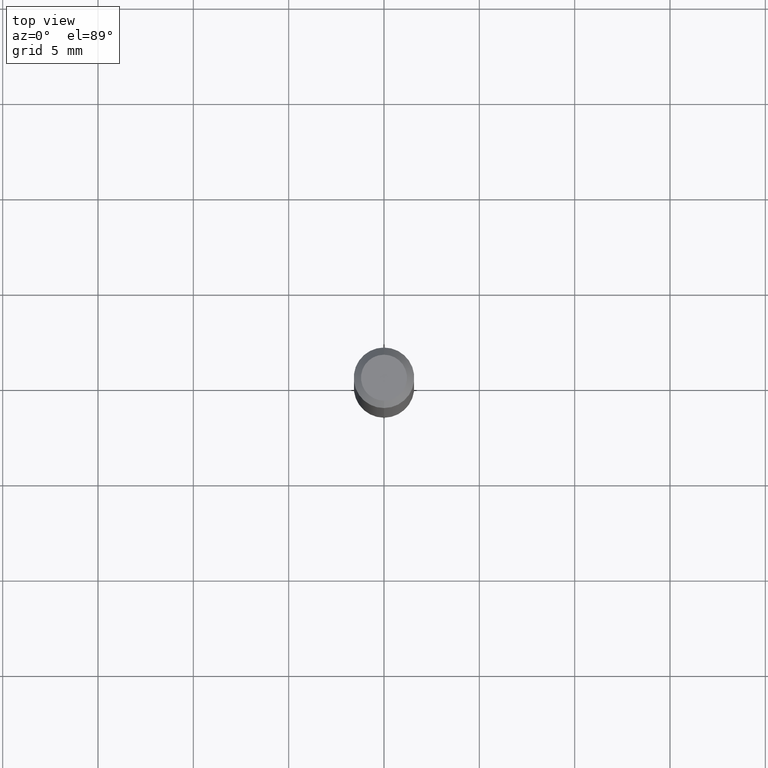
[diagram: clean part render]
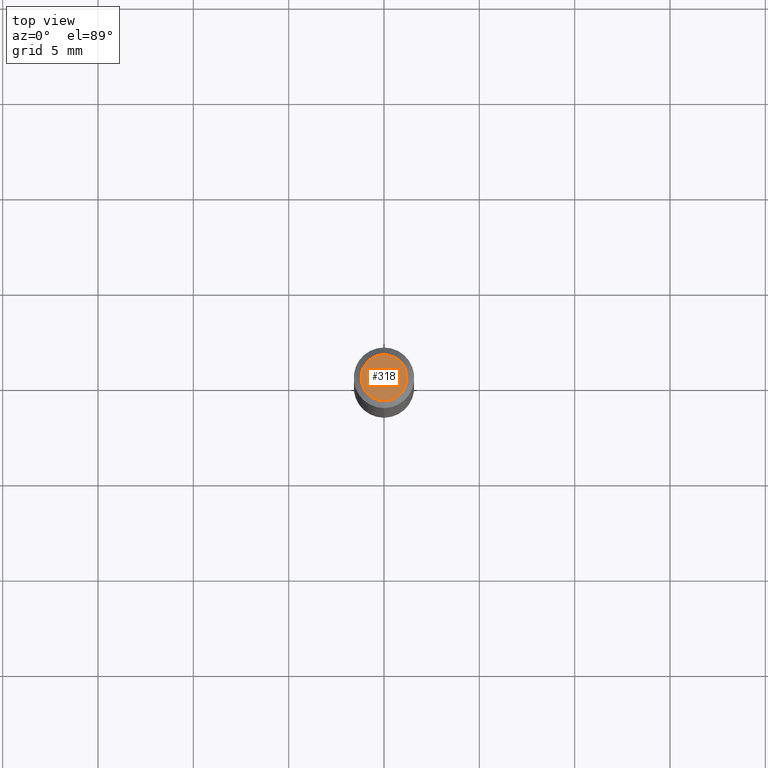
[diagram: same view with one face highlighted and labeled with its STEP entity id]
A machine part, top view. The second image highlights one B-rep face of the part: STEP entity #318.
In plain terms, the highlighted planar face has unit normal (0, -0, -1).
Its self-contained STEP definition (entity closure, byte-faithful):
#2 = EDGE_CURVE ( 'NONE', #114, #412, #182, .T. ) ;
#30 = EDGE_CURVE ( 'NONE', #412, #114, #115, .T. ) ;
#44 = DIRECTION ( 'NONE',  ( -6.982962677686266711E-15, -1.000000000000000000, 3.491578020297541166E-15 ) ) ;
#114 = VERTEX_POINT ( 'NONE', #478 ) ;
#115 = CIRCLE ( 'NONE', #218, 0.04749999999999999362 ) ;
#125 = DIRECTION ( 'NONE',  ( -2.445401293886370211E-29, 3.491578020297540772E-15, 1.000000000000000000 ) ) ;
#142 = DIRECTION ( 'NONE',  ( 2.445401293886369650E-29, -3.491578020297540772E-15, -1.000000000000000000 ) ) ;
#176 = CARTESIAN_POINT ( 'NONE',  ( 3.316907271900976096E-16, 0.04749999999999999362, -1.702778195755068235E-16 ) ) ;
#182 = CIRCLE ( 'NONE', #495, 0.04749999999999999362 ) ;
#207 = DIRECTION ( 'NONE',  ( -2.445401293886370211E-29, 3.491578020297540772E-15, 1.000000000000000000 ) ) ;
#211 = AXIS2_PLACEMENT_3D ( 'NONE', #176, #142, #291 ) ;
#218 = AXIS2_PLACEMENT_3D ( 'NONE', #485, #125, #443 ) ;
#220 = PLANE ( 'NONE',  #211 ) ;
#229 = ORIENTED_EDGE ( 'NONE', *, *, #30, .T. ) ;
#258 = FACE_OUTER_BOUND ( 'NONE', #482, .T. ) ;
#272 = ORIENTED_EDGE ( 'NONE', *, *, #2, .T. ) ;
#291 = DIRECTION ( 'NONE',  ( 6.982962677686265922E-15, 1.000000000000000000, -3.491578020297540772E-15 ) ) ;
#318 = ADVANCED_FACE ( 'NONE', ( #258 ), #220, .F. ) ;
#412 = VERTEX_POINT ( 'NONE', #438 ) ;
#438 = CARTESIAN_POINT ( 'NONE',  ( 3.840629472727447874E-16, 0.04749999999999999362, -1.747056831868805136E-16 ) ) ;
#441 = CARTESIAN_POINT ( 'NONE',  ( 2.165580680881109028E-46, -3.092046252469518699E-32, -8.855727222747337073E-18 ) ) ;
#443 = DIRECTION ( 'NONE',  ( -6.982962677686266711E-15, -1.000000000000000000, 3.491578020297541166E-15 ) ) ;
#478 = CARTESIAN_POINT ( 'NONE',  ( -3.773273898774340269E-16, -0.04749999999999999362, 1.569942287413858518E-16 ) ) ;
#482 = EDGE_LOOP ( 'NONE', ( #229, #272 ) ) ;
#485 = CARTESIAN_POINT ( 'NONE',  ( 2.165580680881109028E-46, -3.092046252469518699E-32, -8.855727222747337073E-18 ) ) ;
#495 = AXIS2_PLACEMENT_3D ( 'NONE', #441, #207, #44 ) ;